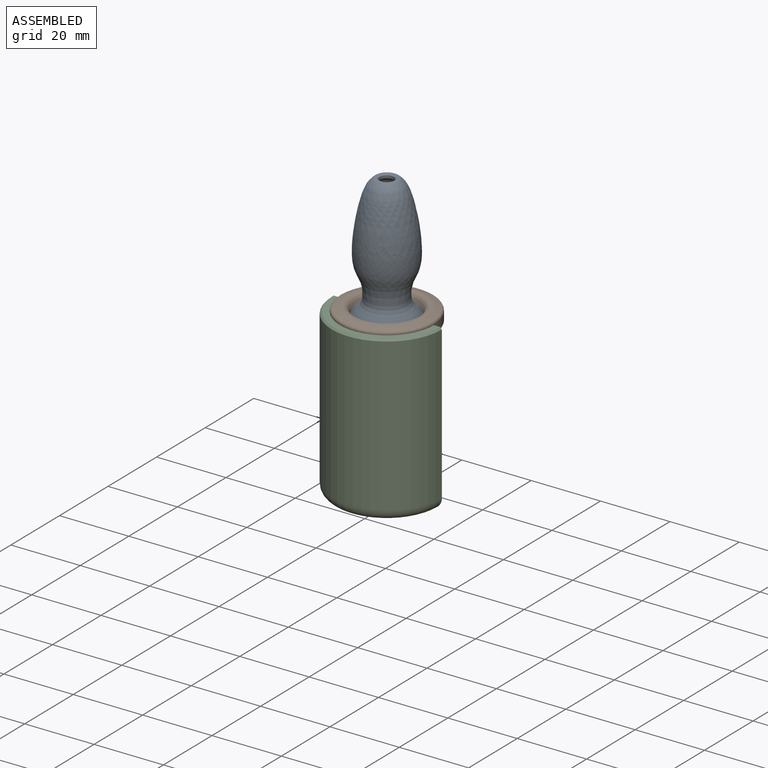
[diagram: assembled view]
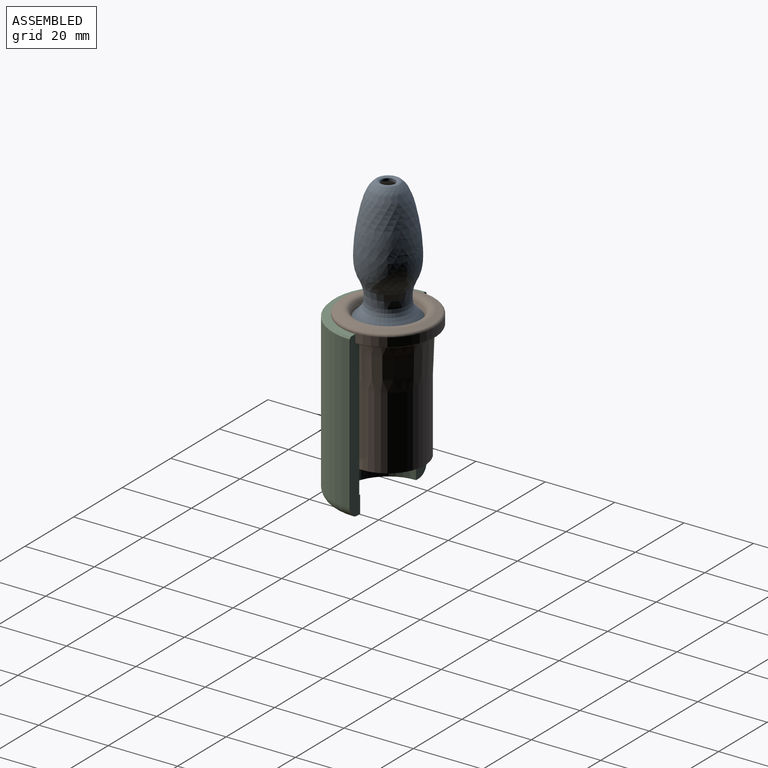
[diagram: assembled view, second angle]
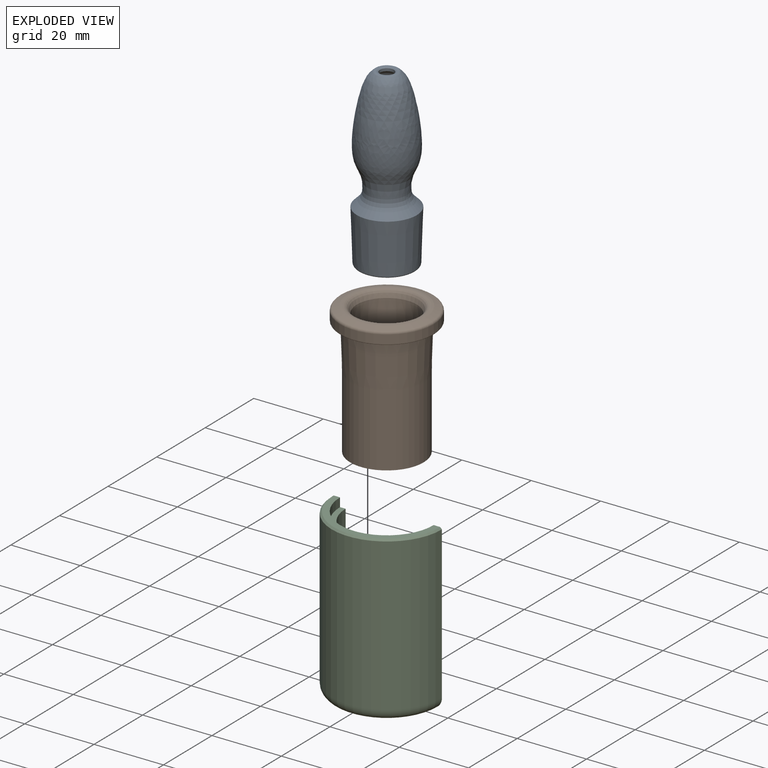
[diagram: exploded view]
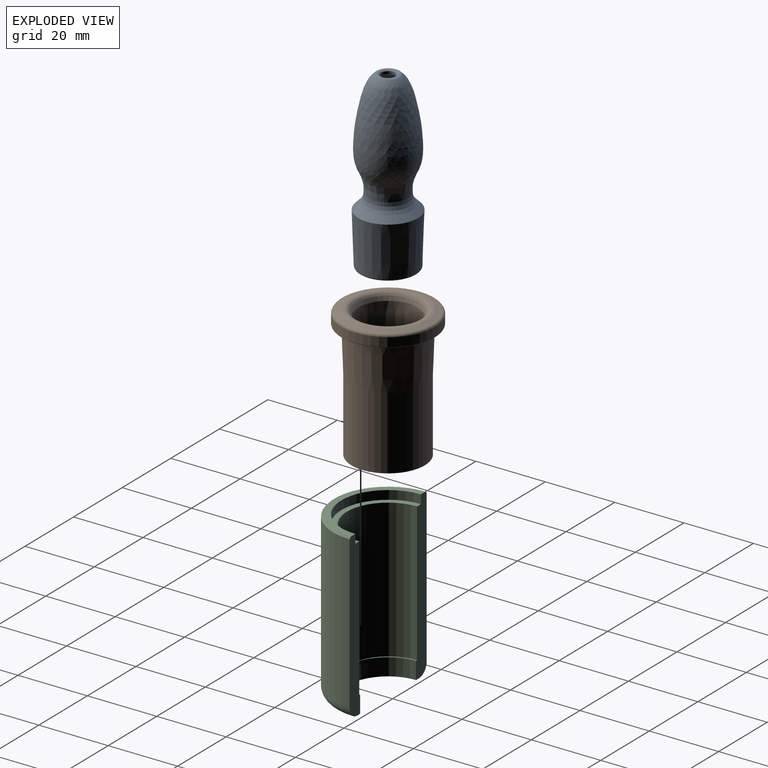
[diagram: exploded view, second angle]
ASSEMBLY  parts=3 mates=4
PART A: 16 faces, bbox 21.2x21.2x50.4 mm
  f0: revolved ~29.32x13.58mm, area 1053.5mm2, adj f5,f15
  f1: torus R=2.74mm, axis (0,0,1), area 25.7mm2, adj f11,f15
  f2: torus R=5.5mm, axis (0,0,1), area 14mm2, adj f3,f10
  f3: plane 11x11mm, normal (0,0,-1), area 31.4mm2, adj f2,f4
  f4: torus R=4.5mm, axis (0,0,1), area 6.4mm2, adj f3,f5
  f5: cylinder r=4.3mm len=8.6mm, axis (0,0,1), area 125.6mm2, adj f0,f4
  f6: cylinder r=5.8mm len=11.6mm, axis (0,0,1), area 18.9mm2, adj f11,f12
  f7: cone r=8.62mm half-angle=45deg, axis (0,0,-1), area 114.6mm2, adj f8,f12
  f8: cone r=8.12mm half-angle=1.9deg, axis (0,0,1), area 765.1mm2, adj f7,f14
  f9: plane 15.28x15.28mm, normal (0,0,-1), area 60.7mm2, adj f13,f14
  f10: cylinder r=5.75mm len=13.63mm, axis (0,0,1), area 492.3mm2, adj f2,f13
  f11: revolved ~30.15x16.58mm, area 1374.4mm2, adj f1,f6
  f12: torus R=9.8mm, axis (0,0,1), area 122.4mm2, adj f6,f7
  f13: cone r=6.25mm half-angle=20deg, axis (0,0,-1), area 55.1mm2, adj f9,f10
  f14: torus R=7.64mm, axis (0,0,1), area 38.4mm2, adj f8,f9
  f15: cylinder r=2mm len=4mm, axis (0,0,-1), area 9.2mm2, adj f0,f1
PART B: 19 faces, bbox 30.5x30.5x38.1 mm
  f0: revolved ~26.06x26.06mm, area 374mm2, adj f1,f15
  f1: torus R=12.75mm, axis (0,0,1), area 74.8mm2, adj f0,f2
  f2: cylinder r=13.5mm len=27mm, axis (0,0,1), area 212.1mm2, adj f1,f16
  f3: plane 26.5x26.5mm, normal (0,0,-1), area 150.5mm2, adj f16,f17
  f4: cone r=11.06mm half-angle=2deg, axis (0,0,1), area 854.3mm2, adj f17,f18
  f5: cylinder r=10.6mm len=21.2mm, axis (0,0,1), area 1384.9mm2, adj f6,f18
  f6: plane 21.2x21.2mm, normal (0,0,-1), area 107mm2, adj f5,f7
  f7: cylinder r=8.85mm len=17.7mm, axis (0,0,1), area 600.5mm2, adj f6,f8
  f8: plane 17.9x17.9mm, normal (0,0,1), area 5.6mm2, adj f7,f9
  f9: cylinder r=8.95mm len=17.9mm, axis (0,0,1), area 449.9mm2, adj f8,f10
  f10: plane 17.9x17.9mm, normal (0,0,-1), area 5.6mm2, adj f9,f11
  f11: torus R=8.65mm, axis (0,0,1), area 17.3mm2, adj f10,f12
  f12: plane 17.3x17.3mm, normal (0,0,-1), area 18.6mm2, adj f11,f13
  f13: torus R=8.3mm, axis (0,0,1), area 16.1mm2, adj f12,f14
  f14: cylinder r=8.1mm len=16.2mm, axis (0,0,1), area 91.6mm2, adj f13,f15
  f15: cone r=8.1mm half-angle=2deg, axis (0,0,1), area 788.6mm2, adj f0,f14
  f16: torus R=13.25mm, axis (0,0,-1), area 33.1mm2, adj f2,f3
  f17: torus R=11.3mm, axis (0,0,-1), area 26.9mm2, adj f3,f4
  f18: torus R=22.6mm, axis (0,0,1), area 28mm2, adj f4,f5
PART C: 12 faces, bbox 34.4x17.2x47.6 mm
  f0: plane 25.4x12.7mm, normal (0,0,-1), area 45.6mm2, adj f1,f8,f9,f10
  f1: cylinder r=11.5mm len=23mm, axis (0,0,1), area 180.6mm2, adj f0,f2,f9,f10
  f2: plane 23.81x11.91mm, normal (0,0,1), area 14.9mm2, adj f1,f3,f9,f10
  f3: cylinder r=11.91mm len=40.09mm, axis (0,0,1), area 1499.4mm2, adj f2,f4,f9,f10
  f4: plane 27x13.5mm, normal (0,0,1), area 63.6mm2, adj f3,f5,f9,f10
  f5: cylinder r=13.5mm len=27mm, axis (0,0,1), area 107.7mm2, adj f4,f6,f9,f10
  f6: plane 30.75x15.38mm, normal (0,0,1), area 85mm2, adj f5,f9,f10,f11
  f7: cylinder r=15.88mm len=43.95mm, axis (0,0,1), area 2191.9mm2, adj f8,f9,f10,f11
  f8: torus R=12.7mm, axis (0,0,1), area 230.7mm2, adj f0,f7,f9,f10
  f9: plane 47.63x4.38mm, normal (0,1,0), area 184.7mm2, adj f0,f1,f2,f3,f4,f5,f6,f7
  f10: plane 47.63x4.38mm, normal (0,1,0), area 184.7mm2, adj f0,f1,f2,f3,f4,f5,f6,f7
  f11: cone r=15.38mm half-angle=45deg, axis (0,0,-1), area 34.7mm2, adj f6,f7,f9,f10
PLACE A t=(2.23,0.28,-11.34)mm
PLACE B rot(axis=(0,0,1),0deg) t=(2.23,0.28,-11.34)mm
PLACE C rot(axis=(0,0,1),0deg) t=(-10.35,0.28,-18.83)mm
MATE planar C.f4 <-> B.f1  axis (0,0,1) through (2.23,-7.82,1.66)mm
MATE planar A.f1 <-> B.f1  axis (0,0,-1) through (2.23,0.28,-11.34)mm
MATE slider C.f11 <-> B.f1  axis (0,0,1) through (2.23,0.28,-18.28)mm
MATE cylindrical B.f1 <-> A.f1  axis (0,0,1) through (2.23,0.28,-21.95)mm
